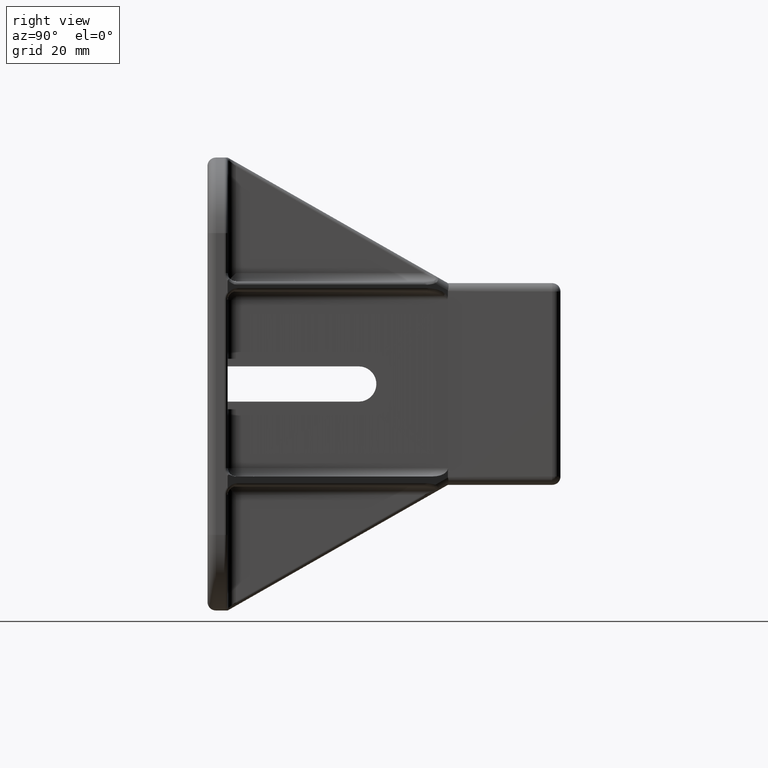
[diagram: clean part render]
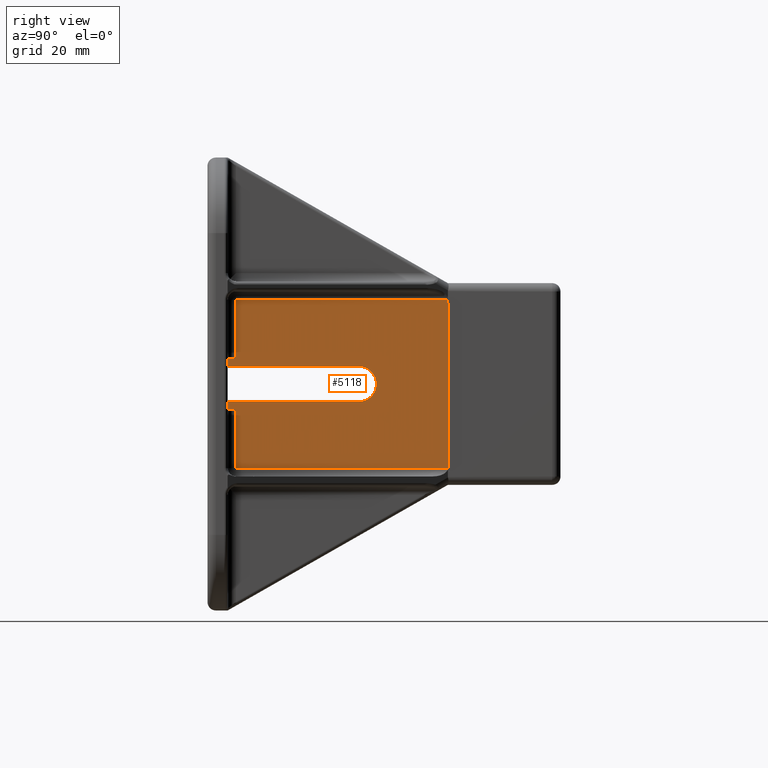
[diagram: same view with one face highlighted and labeled with its STEP entity id]
A machine part, right view. The second image highlights one B-rep face of the part: STEP entity #5118.
In plain terms, the highlighted planar face has unit normal (0.9998, 0.0175, 0).
Its self-contained STEP definition (entity closure, byte-faithful):
#93=ELLIPSE('',#5468,5.2507997222305,5.25);
#174=PLANE('',#5467);
#388=LINE('',#8237,#828);
#389=LINE('',#8239,#829);
#390=LINE('',#8241,#830);
#391=LINE('',#8243,#831);
#392=LINE('',#8245,#832);
#393=LINE('',#8247,#833);
#394=LINE('',#8251,#834);
#395=LINE('',#8253,#835);
#396=LINE('',#8255,#836);
#397=LINE('',#8257,#837);
#398=LINE('',#8258,#838);
#828=VECTOR('',#6220,49.0810386620799);
#829=VECTOR('',#6221,62.7974726408433);
#830=VECTOR('',#6222,17.4999999999999);
#831=VECTOR('',#6223,2.45674315778922);
#832=VECTOR('',#6224,2.2500000000002);
#833=VECTOR('',#6225,39.0059407937124);
#834=VECTOR('',#6228,39.0059407937124);
#835=VECTOR('',#6229,2.2499999999998);
#836=VECTOR('',#6230,2.45674315778885);
#837=VECTOR('',#6231,17.5000000000001);
#838=VECTOR('',#6232,63.0532343290867);
#1300=FACE_OUTER_BOUND('',#1608,.T.);
#1608=EDGE_LOOP('',(#3659,#3660,#3661,#3662,#3663,#3664,#3665,#3666,#3667,
#3668,#3669,#3670,#3671));
#2104=B_SPLINE_CURVE_WITH_KNOTS('',3,(#7582,#7583,#7584,#7585,#7586,#7587,
#7588,#7589),.UNSPECIFIED.,.F.,.F.,(4,2,2,4),(-0.0660642176493721,-0.0364732556523763,
0.,0.000279266596942335),.UNSPECIFIED.);
#2169=VERTEX_POINT('',#7569);
#2170=VERTEX_POINT('',#7580);
#2349=VERTEX_POINT('',#8236);
#2350=VERTEX_POINT('',#8238);
#2351=VERTEX_POINT('',#8240);
#2352=VERTEX_POINT('',#8242);
#2353=VERTEX_POINT('',#8244);
#2354=VERTEX_POINT('',#8246);
#2355=VERTEX_POINT('',#8248);
#2356=VERTEX_POINT('',#8250);
#2357=VERTEX_POINT('',#8252);
#2358=VERTEX_POINT('',#8254);
#2359=VERTEX_POINT('',#8256);
#2662=EDGE_CURVE('',#2169,#2170,#2104,.T.);
#2851=EDGE_CURVE('',#2349,#2169,#388,.T.);
#2852=EDGE_CURVE('',#2170,#2350,#389,.T.);
#2853=EDGE_CURVE('',#2350,#2351,#390,.T.);
#2854=EDGE_CURVE('',#2351,#2352,#391,.T.);
#2855=EDGE_CURVE('',#2353,#2352,#392,.T.);
#2856=EDGE_CURVE('',#2353,#2354,#393,.T.);
#2857=EDGE_CURVE('',#2354,#2355,#93,.T.);
#2858=EDGE_CURVE('',#2355,#2356,#394,.T.);
#2859=EDGE_CURVE('',#2357,#2356,#395,.T.);
#2860=EDGE_CURVE('',#2357,#2358,#396,.T.);
#2861=EDGE_CURVE('',#2358,#2359,#397,.T.);
#2862=EDGE_CURVE('',#2359,#2349,#398,.T.);
#3659=ORIENTED_EDGE('',*,*,#2851,.T.);
#3660=ORIENTED_EDGE('',*,*,#2662,.T.);
#3661=ORIENTED_EDGE('',*,*,#2852,.T.);
#3662=ORIENTED_EDGE('',*,*,#2853,.T.);
#3663=ORIENTED_EDGE('',*,*,#2854,.T.);
#3664=ORIENTED_EDGE('',*,*,#2855,.F.);
#3665=ORIENTED_EDGE('',*,*,#2856,.T.);
#3666=ORIENTED_EDGE('',*,*,#2857,.T.);
#3667=ORIENTED_EDGE('',*,*,#2858,.T.);
#3668=ORIENTED_EDGE('',*,*,#2859,.F.);
#3669=ORIENTED_EDGE('',*,*,#2860,.T.);
#3670=ORIENTED_EDGE('',*,*,#2861,.T.);
#3671=ORIENTED_EDGE('',*,*,#2862,.T.);
#5118=ADVANCED_FACE('',(#1300),#174,.T.);
#5467=AXIS2_PLACEMENT_3D('',#8235,#6218,#6219);
#5468=AXIS2_PLACEMENT_3D('',#8249,#6226,#6227);
#6218=DIRECTION('center_axis',(0.999847695156391,0.0174524064372836,0.));
#6219=DIRECTION('ref_axis',(-0.0174524064372825,0.999847695156391,0.));
#6220=DIRECTION('',(0.,0.,1.));
#6221=DIRECTION('',(0.0174524064372835,-0.999847695156391,6.09347513936813E-17));
#6222=DIRECTION('',(0.,0.,-1.));
#6223=DIRECTION('',(0.0174524064372835,-0.999847695156391,5.94209964357291E-17));
#6224=DIRECTION('',(0.,0.,1.));
#6225=DIRECTION('',(-0.0174524064372836,0.999847695156391,0.));
#6226=DIRECTION('center_axis',(-0.999847695156391,-0.0174524064372825,1.26863306546402E-15));
#6227=DIRECTION('ref_axis',(0.0174524064372825,-0.999847695156391,-1.3042482857547E-12));
#6228=DIRECTION('',(0.0174524064372836,-0.999847695156391,0.));
#6229=DIRECTION('',(-3.72277780230671E-15,2.13277797453994E-13,1.));
#6230=DIRECTION('',(-0.0174524064372835,0.999847695156391,-6.24485063516335E-17));
#6231=DIRECTION('',(0.,0.,-1.));
#6232=DIRECTION('',(-0.0174524064372835,0.999847695156391,-6.09347513936813E-17));
#7569=CARTESIAN_POINT('',(30.,71.4999999999999,24.08103866208));
#7580=CARTESIAN_POINT('',(30.0044636569343,71.2442772655005,25.0000000000001));
#7582=CARTESIAN_POINT('Ctrl Pts',(30.,71.4999999999998,24.0810386628376));
#7583=CARTESIAN_POINT('Ctrl Pts',(29.9999999999234,71.5000000043906,24.2424271672456));
#7584=CARTESIAN_POINT('Ctrl Pts',(30.0003452569801,71.4802202408607,24.4032688459162));
#7585=CARTESIAN_POINT('Ctrl Pts',(30.0019908939306,71.3859417631057,24.7505828283154));
#7586=CARTESIAN_POINT('Ctrl Pts',(30.003305013798,71.310655886327,24.8948311906032));
#7587=CARTESIAN_POINT('Ctrl Pts',(30.0044462777645,71.2452729174705,24.9984269183515));
#7588=CARTESIAN_POINT('Ctrl Pts',(30.0044549614802,71.2447754277332,24.9992136715256));
#7589=CARTESIAN_POINT('Ctrl Pts',(30.0044636569343,71.2442772655005,25.0000000000001));
#8235=CARTESIAN_POINT('Origin',(30.,71.5,-30.));
#8236=CARTESIAN_POINT('',(30.,71.5,-24.9999999999999));
#8237=CARTESIAN_POINT('',(30.,71.5,-30.));
#8238=CARTESIAN_POINT('',(31.1004306726965,8.45636898390679,25.0000000000001));
#8239=CARTESIAN_POINT('',(30.,71.5,25.0000000000001));
#8240=CARTESIAN_POINT('',(31.1004306726965,8.45636898390679,7.50000000000021));
#8241=CARTESIAN_POINT('',(31.1004306726965,8.45636898390679,7.5000000000002));
#8242=CARTESIAN_POINT('',(31.1433067527983,6.00000000000001,7.50000000000021));
#8243=CARTESIAN_POINT('',(29.4188100811806,104.796348149346,7.50000000000021));
#8244=CARTESIAN_POINT('',(31.1433067527982,6.00000000000001,5.25));
#8245=CARTESIAN_POINT('',(31.1433067527983,6.00000000000001,-30.));
#8246=CARTESIAN_POINT('',(30.4625592205978,45.,5.25));
#8247=CARTESIAN_POINT('',(30.,71.5,5.25));
#8248=CARTESIAN_POINT('',(30.4625592205977,45.,-5.25));
#8249=CARTESIAN_POINT('Origin',(30.4625592205978,45.,3.33066907387547E-15));
#8250=CARTESIAN_POINT('',(31.1433067527983,6.00000000000001,-5.24999999999999));
#8251=CARTESIAN_POINT('',(30.,71.5,-5.24999999999999));
#8252=CARTESIAN_POINT('',(31.1433067527983,6.0000000000004,-7.49999999999979));
#8253=CARTESIAN_POINT('',(31.1433067527982,6.00000000000199,7.50000000002133));
#8254=CARTESIAN_POINT('',(31.1004306726965,8.45636898390679,-7.49999999999979));
#8255=CARTESIAN_POINT('',(29.4157642162761,104.970845632859,-7.4999999999998));
#8256=CARTESIAN_POINT('',(31.1004306726965,8.45636898390679,-24.9999999999999));
#8257=CARTESIAN_POINT('',(31.1004306726965,8.45636898390679,-27.4999999999999));
#8258=CARTESIAN_POINT('',(30.,71.5,-24.9999999999999));